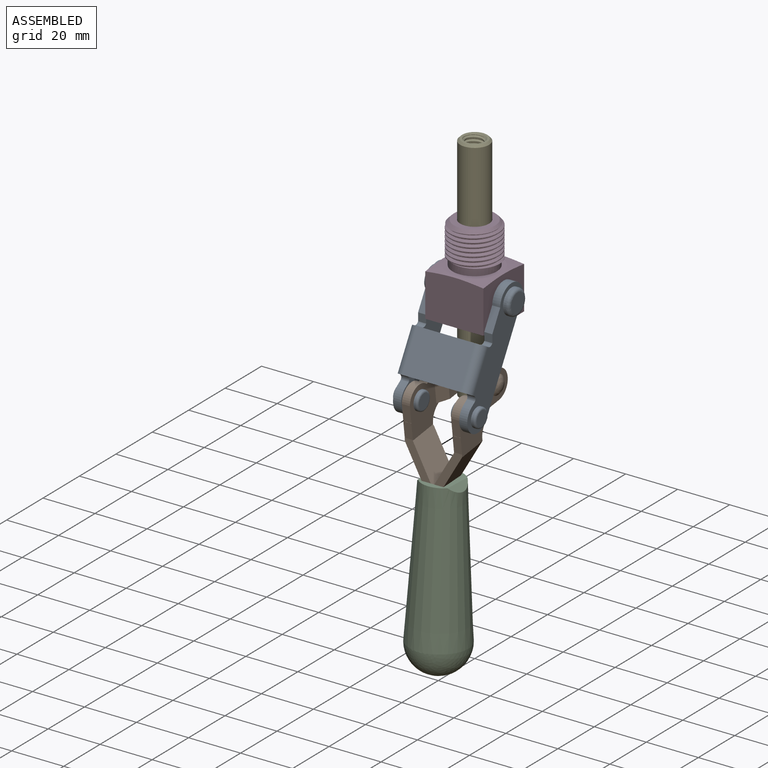
[diagram: assembled view]
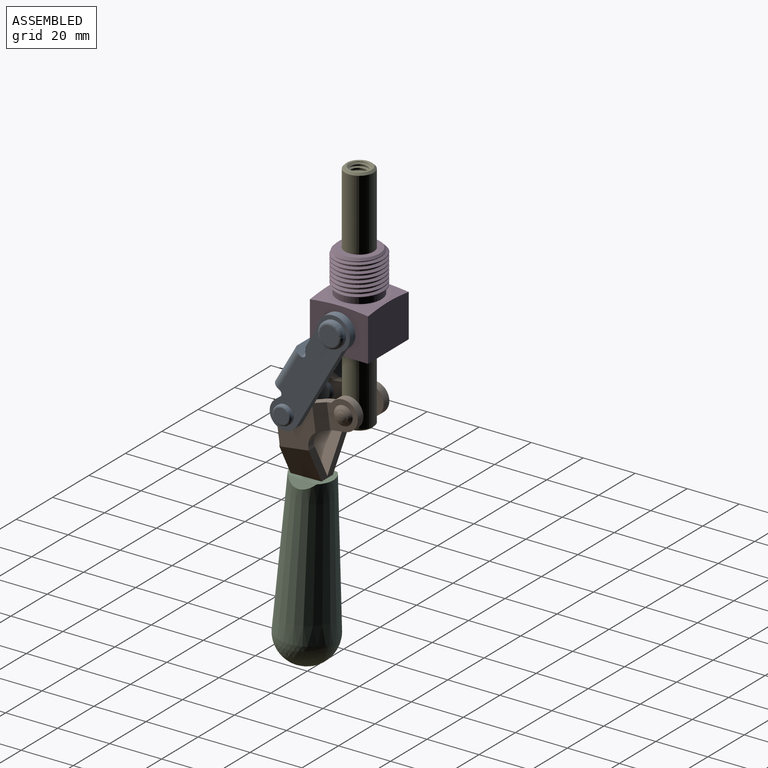
[diagram: assembled view, second angle]
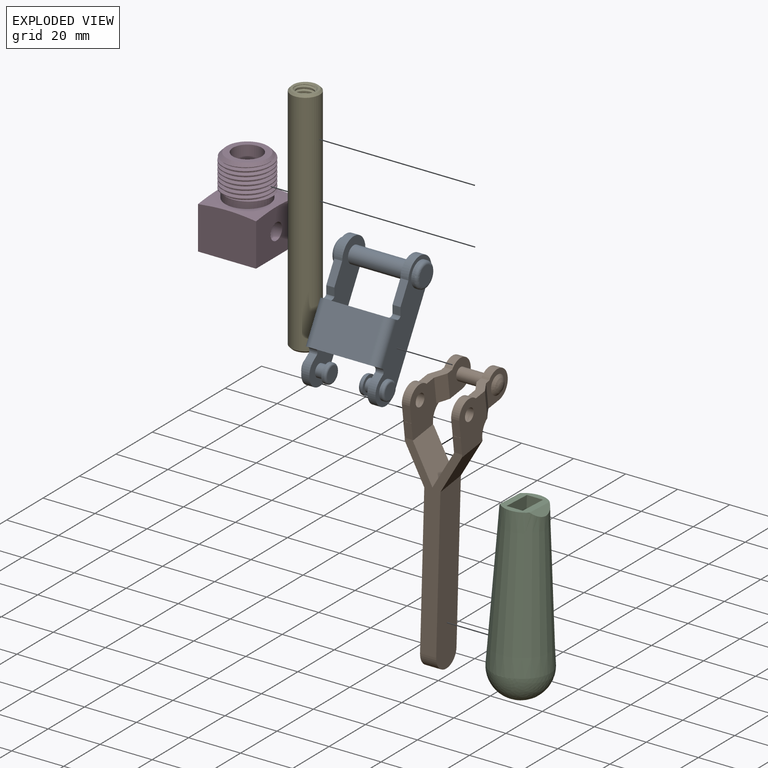
[diagram: exploded view]
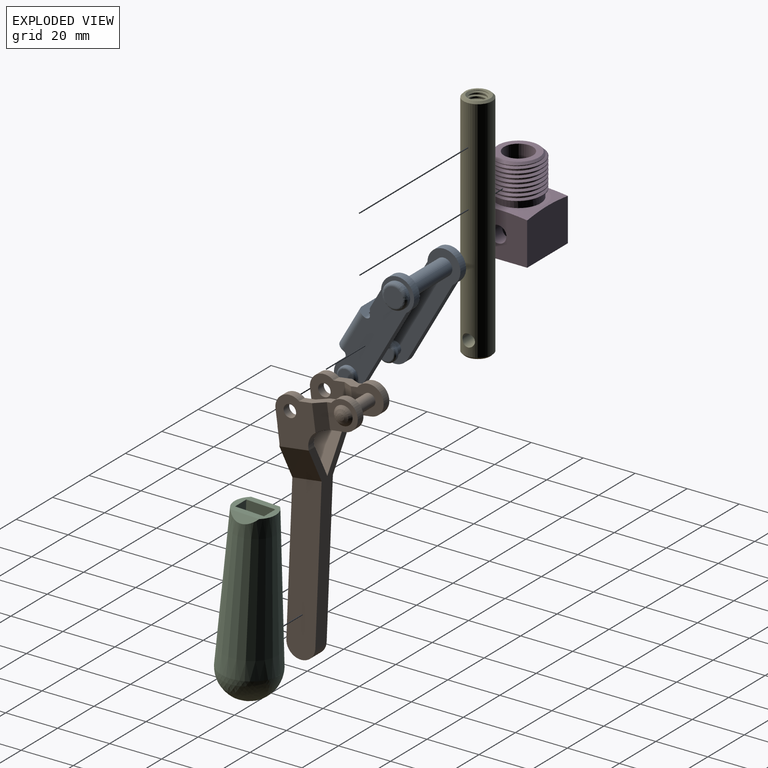
[diagram: exploded view, second angle]
ASSEMBLY  parts=5 mates=5
PART A: 51 faces, bbox 33.1x15.5x50 mm
  f0: plane 5.72x5.72mm, normal (-1,0,0), area 25.6mm2, adj f3
  f1: plane 7.37x7.37mm, normal (1,0,0), area 42.6mm2, adj f4
  f2: plane 5.72x5.72mm, normal (1,0,0), area 25.6mm2, adj f5
  f3: revolved ~7.24x7.24mm, area 25.1mm2, adj f0,f6
  f4: revolved ~9.65x9.65mm, area 49.8mm2, adj f1,f7
  f5: revolved ~7.24x7.24mm, area 25.1mm2, adj f2,f8
  f6: cylinder r=3.62mm len=7.24mm, axis (-1,0,0), area 21.7mm2, adj f3,f13
  f7: cylinder r=4.83mm len=9.65mm, axis (-1,0,0), area 34.7mm2, adj f4,f14
  f8: cylinder r=3.62mm len=7.24mm, axis (-1,0,0), area 21.7mm2, adj f5,f14
  f9: plane 7.37x7.37mm, normal (-1,0,0), area 42.6mm2, adj f15
  f10: plane 5.72x5.72mm, normal (-1,0,0), area 25.6mm2, adj f16
  f11: plane 5.72x5.72mm, normal (1,0,0), area 25.6mm2, adj f17
  f12: cylinder r=3.1mm len=3.89mm, axis (0,0,-1), area 0.8mm2, adj f14,f21
  f13: plane 7.24x7.24mm, normal (1,0,0), area 22.9mm2, adj f6,f25
  f14: plane 50.04x12.4mm, normal (1,0,0), area 425.1mm2, adj f7,f8,f12,f18,f19,f20,f21,f22
  f15: revolved ~9.65x9.65mm, area 49.8mm2, adj f9,f30
  f16: revolved ~7.24x7.24mm, area 25.1mm2, adj f10,f31
  f17: revolved ~7.24x7.24mm, area 25.1mm2, adj f11,f32
  f18: cylinder r=1.55mm len=3.1mm, axis (1,0,0), area 7.5mm2, adj f14,f19,f34,f35
  f19: plane 3.1x2.68mm, normal (0,-0.87,-0.5), area 9.6mm2, adj f14,f18,f20,f35
  f20: plane 8.75x3.1mm, normal (0,-1,0), area 27.1mm2, adj f14,f19,f21,f35
  f21: cylinder r=6.35mm len=12.7mm, axis (1,0,0), area 81.3mm2, adj f12,f14,f20,f22,f35
  f22: plane 35.08x3.1mm, normal (0,1,0), area 108.7mm2, adj f14,f21,f23,f35
  f23: cylinder r=5.59mm len=11.18mm, axis (1,0,0), area 62.2mm2, adj f14,f22,f24,f35
  f24: plane 3.1x2.07mm, normal (0,-0.9,0.43), area 7.1mm2, adj f14,f23,f28,f35
  f25: cylinder r=2.41mm len=4.83mm, axis (-1,0,0), area 49.3mm2, adj f13,f35
  f26: plane 22.35x16.05mm, normal (0,-1,0), area 358.8mm2, adj f27,f29,f34,f36
  f27: cylinder r=3.1mm len=16.05mm, axis (0,0,-1), area 78.1mm2, adj f14,f26,f34,f36
  f28: cylinder r=1.55mm len=3.1mm, axis (1,0,0), area 7.5mm2, adj f14,f24,f35,f36
  f29: cylinder r=3.1mm len=16.05mm, axis (0,0,-1), area 78.1mm2, adj f26,f34,f36,f37
  f30: cylinder r=4.83mm len=9.65mm, axis (-1,0,0), area 34.7mm2, adj f15,f37
  f31: cylinder r=3.62mm len=7.24mm, axis (-1,0,0), area 21.7mm2, adj f16,f37
  f32: cylinder r=3.62mm len=7.24mm, axis (-1,0,0), area 21.7mm2, adj f17,f38
  f33: cylinder r=3.1mm len=3.89mm, axis (0,0,-1), area 0.8mm2, adj f37,f42
  f34: plane 28.55x3.56mm, normal (0,0,1), area 87.2mm2, adj f14,f18,f26,f27,f29,f35,f37,f45
  f35: plane 50.04x12.7mm, normal (-1,0,0), area 489.2mm2, adj f18,f19,f20,f21,f22,f23,f24,f25
  f36: plane 28.55x3.56mm, normal (0,0,-1), area 87.2mm2, adj f14,f26,f27,f28,f29,f35,f37,f46
  f37: plane 50.04x12.4mm, normal (-1,0,0), area 425.1mm2, adj f29,f30,f31,f33,f34,f36,f40,f41
  f38: plane 7.24x7.24mm, normal (-1,0,0), area 22.9mm2, adj f32,f49
  f39: cylinder r=3.23mm len=22.35mm, axis (-1,0,0), area 453mm2, adj f35,f50
  f40: cylinder r=5.59mm len=11.18mm, axis (1,0,0), area 62.2mm2, adj f37,f41,f48,f50
  f41: plane 35.08x3.1mm, normal (0,1,0), area 108.7mm2, adj f37,f40,f42,f50
  f42: cylinder r=6.35mm len=12.7mm, axis (1,0,0), area 81.3mm2, adj f33,f37,f41,f43,f50
  f43: plane 8.75x3.1mm, normal (0,-1,0), area 27.1mm2, adj f37,f42,f44,f50
  f44: plane 3.1x2.68mm, normal (0,-0.87,-0.5), area 9.6mm2, adj f37,f43,f45,f50
  f45: cylinder r=1.55mm len=3.1mm, axis (1,0,0), area 7.5mm2, adj f34,f37,f44,f50
  f46: plane 22.35x16.05mm, normal (0,1,0), area 358.8mm2, adj f34,f35,f36,f50
  f47: cylinder r=1.55mm len=3.1mm, axis (1,0,0), area 7.5mm2, adj f36,f37,f48,f50
  f48: plane 3.1x2.07mm, normal (0,-0.9,0.43), area 7.1mm2, adj f37,f40,f47,f50
  f49: cylinder r=2.41mm len=4.83mm, axis (-1,0,0), area 49.3mm2, adj f38,f50
  f50: plane 50.04x12.7mm, normal (1,0,0), area 489.2mm2, adj f34,f36,f39,f40,f41,f42,f43,f44
PART B: 46 faces, bbox 36.4x108.9x57.2 mm
  f0: revolved ~7.2x7.2mm, area 48.5mm2, adj f1
  f1: plane 11.43x11.18mm, normal (-1,0,0), area 68.3mm2, adj f0,f2,f43,f44,f45
  f2: plane 10.06x4.09mm, normal (-0.87,0,0.5), area 45.1mm2, adj f1,f3,f42,f43,f45
  f3: plane 18.28x14.88mm, normal (-1,0,0), area 215.5mm2, adj f2,f4,f35,f36,f37,f38,f39,f40
  f4: plane 6.34x3.1mm, normal (0,0,-1), area 19.6mm2, adj f3,f5,f35,f40
  f5: plane 17.53x16.72mm, normal (1,0,0), area 199.7mm2, adj f4,f6,f33,f34,f35,f36,f37,f40
  f6: plane 9.45x4.09mm, normal (0.87,0,-0.5), area 44.6mm2, adj f5,f7,f33,f42,f43,f45
  f7: plane 12.26x11.18mm, normal (1,0,0), area 98.7mm2, adj f6,f8,f43,f44,f45
  f8: cylinder r=2.4mm len=11.13mm, axis (-1,0,0), area 167.8mm2, adj f7,f9
  f9: plane 12.26x11.18mm, normal (-1,0,0), area 98.7mm2, adj f8,f10,f30,f31,f32
  f10: plane 10.87x5.46mm, normal (0,-1,0), area 35.7mm2, adj f9,f11,f13,f23,f28,f29,f30,f32
  f11: plane 25.83x25.58mm, normal (1,0,0), area 68.3mm2, adj f10,f12,f13,f31,f32
  f12: revolved ~7.2x7.19mm, area 0mm2, adj f11
  f13: plane 10.06x4.09mm, normal (0.87,0,0.5), area 45.1mm2, adj f10,f11,f14,f23,f31
  f14: cylinder r=6.35mm len=6.35mm, axis (1,0,0), area 30.1mm2, adj f13,f15,f22,f23,f29,f30,f31
  f15: plane 3.54x0.76mm, normal (0,0,1), area 2.5mm2, adj f14,f16,f17,f21,f23
  f16: plane 13.73x13.63mm, normal (-0.87,-0.5,0), area 179.8mm2, adj f15,f17,f29,f34,f37
  f17: plane 71.58x22.04mm, normal (0,0.17,0.98), area 462.2mm2, adj f15,f16,f18,f19,f20,f21,f34,f38
  f18: plane 62.48x21.29mm, normal (-1,0,0), area 694.7mm2, adj f17,f19,f37,f38
  f19: cylinder r=5.59mm len=11.09mm, axis (1,0,0), area 108.8mm2, adj f17,f18,f20,f37
  f20: plane 62.48x21.29mm, normal (1,0,0), area 694.7mm2, adj f17,f19,f21,f37
  f21: plane 13.77x13.73mm, normal (0.87,0.5,0), area 179.9mm2, adj f15,f17,f20,f23,f37
  f22: plane 2.81x1.62mm, normal (0,1,0), area 2.3mm2, adj f14,f29,f30
  f23: plane 18.28x14.88mm, normal (1,0,0), area 215.5mm2, adj f10,f13,f14,f15,f21,f24,f25,f26
  f24: plane 6.13x3.1mm, normal (0,0,-1), area 19mm2, adj f23,f25,f29,f37
  f25: plane 3.1x0.05mm, normal (0,-1,0), area 0.2mm2, adj f23,f24,f26,f29
  f26: plane 6.34x3.1mm, normal (0,0,-1), area 19.6mm2, adj f23,f25,f28,f29
  f27: cylinder r=2.4mm len=4.8mm, axis (1,0,0), area 46.7mm2, adj f23,f29
  f28: cylinder r=5.59mm len=9.63mm, axis (1,0,0), area 39.1mm2, adj f10,f23,f26,f29
  f29: plane 17.53x16.72mm, normal (-1,0,0), area 199.7mm2, adj f10,f14,f16,f22,f24,f25,f26,f27
  f30: plane 9.45x4.09mm, normal (-0.87,0,-0.5), area 44.6mm2, adj f9,f10,f14,f22,f29,f31
  f31: plane 7.11x3.83mm, normal (0,1,0), area 22.4mm2, adj f9,f11,f13,f14,f30,f32
  f32: cylinder r=5.59mm len=11.18mm, axis (1,0,0), area 68.6mm2, adj f9,f10,f11,f31
  f33: plane 2.81x1.62mm, normal (0,1,0), area 2.3mm2, adj f5,f6,f42
  f34: plane 13.73x13.63mm, normal (0.87,-0.5,0), area 179.8mm2, adj f5,f16,f17,f37,f39
  f35: plane 3.1x0.05mm, normal (0,-1,0), area 0.2mm2, adj f3,f4,f5,f36
  f36: plane 6.13x3.1mm, normal (0,0,-1), area 19mm2, adj f3,f5,f35,f37
  f37: plane 70.62x22.05mm, normal (0,-0.17,-0.98), area 456.5mm2, adj f3,f5,f16,f18,f19,f20,f21,f23
  f38: plane 13.77x13.73mm, normal (-0.87,0.5,0), area 179.9mm2, adj f3,f17,f18,f37,f39
  f39: plane 3.54x0.76mm, normal (0,0,1), area 2.5mm2, adj f3,f17,f34,f38,f42
  f40: cylinder r=5.59mm len=9.63mm, axis (1,0,0), area 39.1mm2, adj f3,f4,f5,f45
  f41: cylinder r=2.4mm len=4.8mm, axis (1,0,0), area 46.7mm2, adj f3,f5
  f42: cylinder r=6.35mm len=6.35mm, axis (1,0,0), area 30.1mm2, adj f2,f3,f5,f6,f33,f39,f43
  f43: plane 7.11x3.83mm, normal (0,1,0), area 22.4mm2, adj f1,f2,f6,f7,f42,f44
  f44: cylinder r=5.59mm len=11.18mm, axis (1,0,0), area 68.6mm2, adj f1,f7,f43,f45
  f45: plane 10.87x5.46mm, normal (0,-1,0), area 35.7mm2, adj f1,f2,f3,f5,f6,f7,f40,f44
PART C: 10 faces, bbox 22.3x67.2x28.6 mm
  f0: cylinder r=5.59mm len=11.09mm, axis (1,0,0), area 108.8mm2, adj f1,f2,f3,f4
  f1: plane 62.84x21.02mm, normal (-1,0,0), area 687.8mm2, adj f0,f2,f4,f7
  f2: plane 56.28x9.92mm, normal (0,-0.17,-0.98), area 354.2mm2, adj f0,f1,f3,f7
  f3: plane 62.84x21.02mm, normal (1,0,0), area 687.8mm2, adj f0,f2,f4,f7
  f4: plane 56.28x9.92mm, normal (0,0.17,0.98), area 354.2mm2, adj f0,f1,f3,f7
  f5: plane 10.91x3.43mm, normal (0.71,-0.7,0.12), area 25.8mm2, adj f7,f9
  f6: revolved ~22.25x22.08mm, area 777.7mm2, adj f9
  f7: plane 15.63x11.37mm, normal (0,-0.98,0.17), area 94.4mm2, adj f1,f2,f3,f4,f5,f8,f9
  f8: plane 10.91x3.43mm, normal (-0.71,-0.7,0.12), area 25.8mm2, adj f7,f9
  f9: cone r=11.13mm half-angle=3.3deg, axis (0,0.98,-0.17), area 3293.4mm2, adj f5,f6,f7,f8
PART D: 19 faces, bbox 32.2x32.2x33.8 mm
  f0: cylinder r=9.45mm len=18.9mm, axis (0,0,1), area 145.1mm2, adj f2,f5,f17,f18
  f1: cylinder r=8.51mm len=17.02mm, axis (0,0,1), area 149.4mm2, adj f2,f3,f16
  f2: plane 18.6x18.6mm, normal (0,0,-1), area 27.4mm2, adj f0,f1,f17,f18
  f3: plane 20.32x20.32mm, normal (0,0,1), area 96.8mm2, adj f1,f4
  f4: cone r=15.84mm half-angle=80deg, axis (0,0,-1), area 178mm2, adj f3,f7,f8,f9,f10
  f5: cone r=9.45mm half-angle=45deg, axis (0,0,-1), area 8.5mm2, adj f0,f6,f17,f18
  f6: cone r=9.45mm half-angle=45deg, axis (0,0,-1), area 72.9mm2, adj f5,f12,f16,f17,f18
  f7: plane 22.35x17.27mm, normal (0,-1,0), area 379.5mm2, adj f4,f8,f10,f14
  f8: plane 22.35x17.27mm, normal (1,0,0), area 347.9mm2, adj f4,f7,f9,f13,f14
  f9: plane 22.35x17.27mm, normal (0,1,0), area 379.5mm2, adj f4,f8,f10,f14
  f10: plane 22.35x17.27mm, normal (-1,0,0), area 347.9mm2, adj f4,f7,f9,f11,f14
  f11: cylinder r=3.17mm len=6.35mm, axis (-1,0,0), area 111.7mm2, adj f10,f15
  f12: plane 15.85x15.85mm, normal (0,0,1), area 99.6mm2, adj f6,f15
  f13: cylinder r=3.17mm len=6.35mm, axis (-1,0,0), area 111.7mm2, adj f8,f15
  f14: plane 22.35x22.35mm, normal (0,0,-1), area 402mm2, adj f7,f8,f9,f10,f15
  f15: cylinder r=5.58mm len=33.27mm, axis (0,0,1), area 1099.3mm2, adj f11,f12,f13,f14
  f16: bspline ~17.02x17.02mm, area 90.5mm2, adj f1,f6,f17,f18
  f17: bspline ~18.59x18.29mm, area 461.9mm2, adj f0,f2,f5,f6,f16
  f18: bspline ~19.22x19.22mm, area 460.7mm2, adj f0,f2,f5,f6,f16
PART E: 29 faces, bbox 11.1x11.1x90.1 mm
  f0: cone r=3.2mm half-angle=60deg, axis (0,0,1), area 37.2mm2, adj f1
  f1: cylinder r=3.2mm len=6.54mm, axis (0,0,1), area 104mm2, adj f0,f17,f25,f26,f28
  f2: cylinder r=3.2mm len=6.4mm, axis (0,0,1), area 7.4mm2, adj f3,f18,f26,f28
  f3: cylinder r=3.2mm len=6.4mm, axis (0,0,1), area 10.5mm2, adj f2,f4,f26,f28
  f4: cylinder r=3.2mm len=6.4mm, axis (0,0,1), area 10.5mm2, adj f3,f5,f26,f28
  f5: cylinder r=3.2mm len=6.4mm, axis (0,0,1), area 10.5mm2, adj f4,f6,f26,f28
  f6: cylinder r=3.2mm len=6.4mm, axis (0,0,1), area 10.5mm2, adj f5,f7,f26,f28
  f7: cylinder r=3.2mm len=6.4mm, axis (0,0,1), area 10.5mm2, adj f6,f8,f26,f28
  f8: cylinder r=3.2mm len=6.4mm, axis (0,0,1), area 10.5mm2, adj f7,f9,f26,f28
  f9: cylinder r=3.2mm len=6.4mm, axis (0,0,1), area 10.5mm2, adj f8,f10,f26,f28
  f10: cylinder r=3.2mm len=6.4mm, axis (0,0,1), area 10.5mm2, adj f9,f11,f26,f28
  f11: cylinder r=3.2mm len=6.4mm, axis (0,0,1), area 10.5mm2, adj f10,f12,f26,f28
  f12: cylinder r=3.2mm len=6.4mm, axis (0,0,1), area 10.5mm2, adj f11,f13,f26,f28
  f13: cylinder r=3.2mm len=6.4mm, axis (0,0,1), area 10.5mm2, adj f12,f14,f26,f28
  f14: cylinder r=3.2mm len=6.4mm, axis (0,0,1), area 10.5mm2, adj f13,f15,f26,f28
  f15: cylinder r=3.2mm len=6.4mm, axis (0,0,1), area 10.5mm2, adj f14,f16,f26,f28
  f16: cylinder r=3.2mm len=6.4mm, axis (0,0,1), area 10.5mm2, adj f15,f17,f26,f28
  f17: cylinder r=3.2mm len=6.4mm, axis (0,0,1), area 10.5mm2, adj f1,f16,f26,f28
  f18: cone r=3.98mm half-angle=45deg, axis (0,0,1), area 17.6mm2, adj f2,f20,f26,f27,f28
  f19: plane 9.55x9.55mm, normal (0,0,-1), area 71.6mm2, adj f21
  f20: plane 9.55x9.55mm, normal (0,0,1), area 22mm2, adj f18,f22
  f21: cone r=5.54mm half-angle=45deg, axis (0,0,1), area 34.9mm2, adj f19,f24
  f22: cone r=5.54mm half-angle=45deg, axis (0,0,-1), area 34.9mm2, adj f20,f24
  f23: cylinder r=2.4mm len=11.07mm, axis (-1,0,0), area 167mm2, adj f24
  f24: cylinder r=5.54mm len=88.14mm, axis (0,0,1), area 3029.3mm2, adj f21,f22,f23
  f25: plane 0.89x0.62mm, normal (-1,0,0), area 0.3mm2, adj f1,f26,f27,f28
  f26: bspline ~25.09x7.63mm, area 266.8mm2, adj f1,f2,f3,f4,f5,f6,f7,f8
  f27: bspline ~24.87x7.63mm, area 73.6mm2, adj f18,f25,f26,f28
  f28: bspline ~25.27x7.63mm, area 272.7mm2, adj f1,f2,f3,f4,f5,f6,f7,f8
PLACE A rot(axis=(-1,0,0),29.7deg) t=(0,4.35,-1.15)mm
PLACE B rot(axis=(-1,0,0),82.3deg) t=(0.15,27.59,-35.63)mm
PLACE C rot(axis=(-1,0,0),82.3deg) t=(0.15,27.66,-34.02)mm
PLACE D at identity fixed
PLACE E t=(0,0,-11.5)mm
MATE revolute A.f23 <-> B.f27  axis (-1,0,0) through (11.18,-18.88,-41.88)mm
MATE revolute A.f7 <-> D.f11  axis (-1,0,0) through (11.18,0,-8.79)mm
MATE slider D.f0 <-> E.f21  axis (0,0,1) through (0,0,-17.45)mm
MATE cylindrical B.f8 <-> E.f23  axis (-1,0,0) through (0.15,0,-39.34)mm
MATE fastened C.f1 <-> B.f20  axis (-1,0,0) through (3.25,-12.22,-67.64)mm
